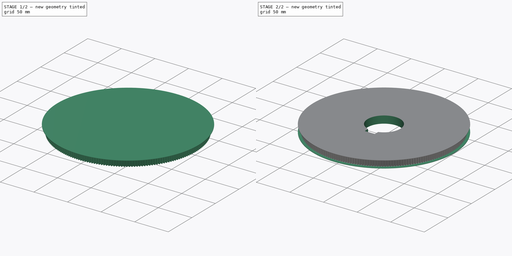
[diagram: build sequence overview — one tinted view per stage of 2, left to right]
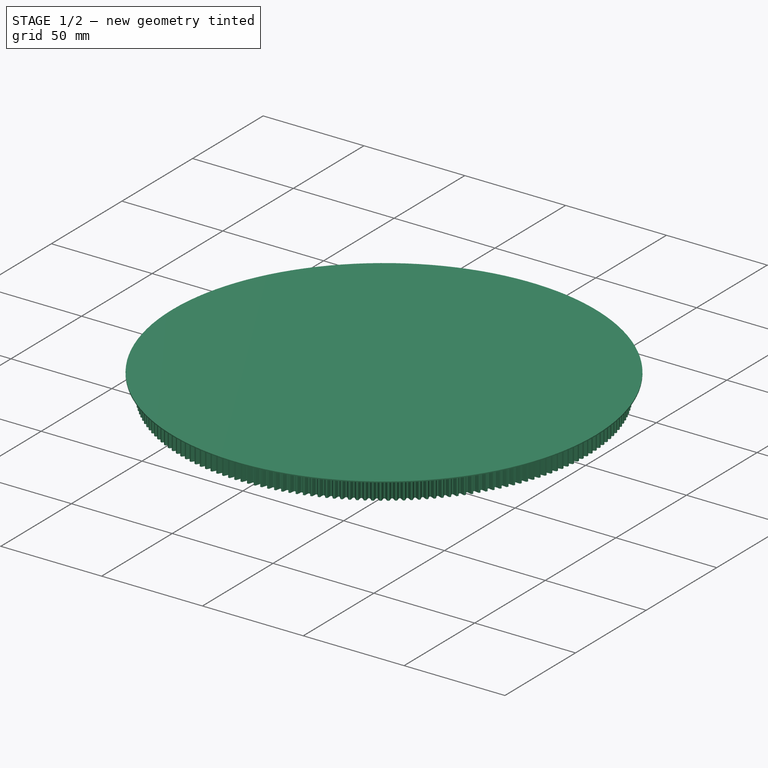
[diagram: stage 1 of 2 — iso view after this stage's code; geometry added in this stage tinted green]
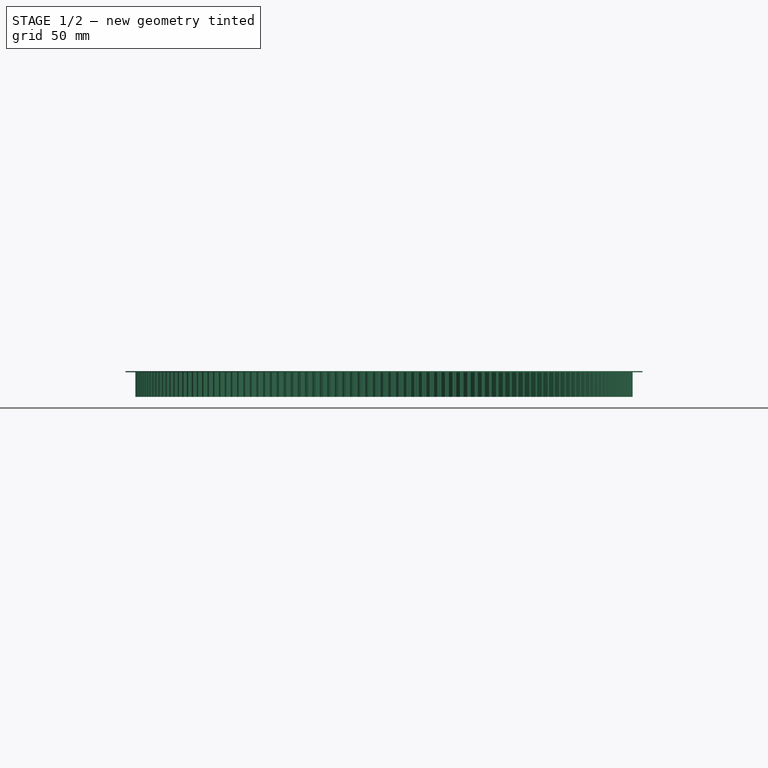
[diagram: stage 1 of 2 — front view after this stage's code; geometry added in this stage tinted green]
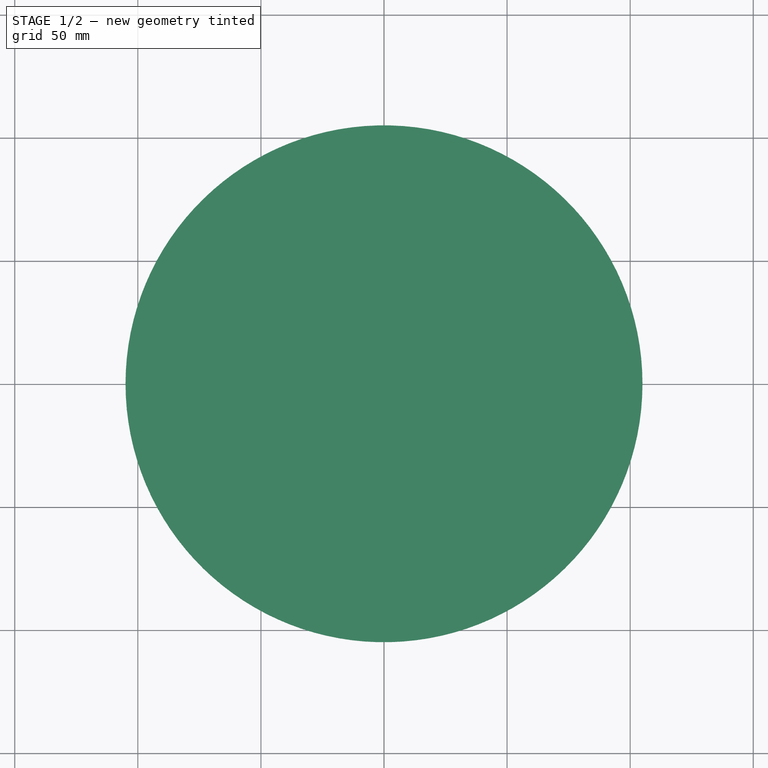
[diagram: stage 1 of 2 — top view after this stage's code; geometry added in this stage tinted green]
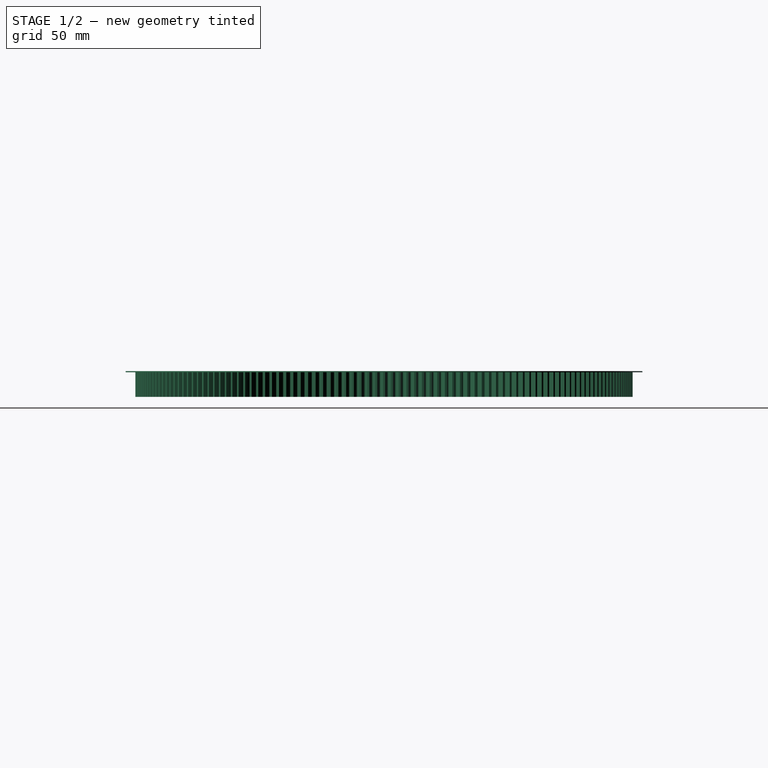
[diagram: stage 1 of 2 — right view after this stage's code; geometry added in this stage tinted green]
FCSTD DOCUMENT  (FreeCAD 0.21R33771 (Git))
Label: gear_margins
License: All rights reserved
LicenseURL: https://en.wikipedia.org/wiki/All_rights_reserved
objects: PartDesign::Pad×3, Sketcher::SketchObject×3, Part::Part2DObjectPython×1, PartDesign::Pocket×1, PartDesign::Body×1
note: 13 computed .brp shape members not serialized (recipe doc carries the construction recipe); baked Part::Feature solids carry a one-line shape summary decoded from their .brp

FEATURE [Part::Part2DObjectPython] InvoluteGear  # Draft 2D object (typed FeaturePython)
  AddendumCoefficient = 1
  DedendumCoefficient = 1.25
  ExternalGear = true
  HighPrecision = true
  Modules = 1
  NumberOfTeeth = 200
  PressureAngle = 20
  ProfileShiftCoefficient = 0
  RootFilletCoefficient = 0.38
FEATURE [PartDesign::Pad] Pad
  Direction = (0,0,1)
  Length = 10
  Length2 = 10
  Profile = -> InvoluteGear
  ReferenceAxis = -> InvoluteGear [N_Axis]
  Type = 0
FEATURE [Sketcher::SketchObject] Sketch
  FullyConstrained = true
  MapMode = 5
  Placement = pos=(0,0,10) rot=(0,0,1;0rad)
  Support = -> [Pad]
  sketch-geometry (1):
    g0: Circle CenterX=0 CenterY=0 CenterZ=0 NormalX=0 NormalY=0 NormalZ=1 AngleXU=0 Radius=105
  constraints (2):
    c: Coincident(g0,g-1)
    c: Radius(g0) = 105
FEATURE [PartDesign::Pad] Pad001
  BaseFeature = -> Pad
  Direction = (0,0,1)
  Length = 0.5
  Length2 = 10
  Profile = -> Sketch
  ReferenceAxis = -> Sketch [N_Axis]
  Type = 0
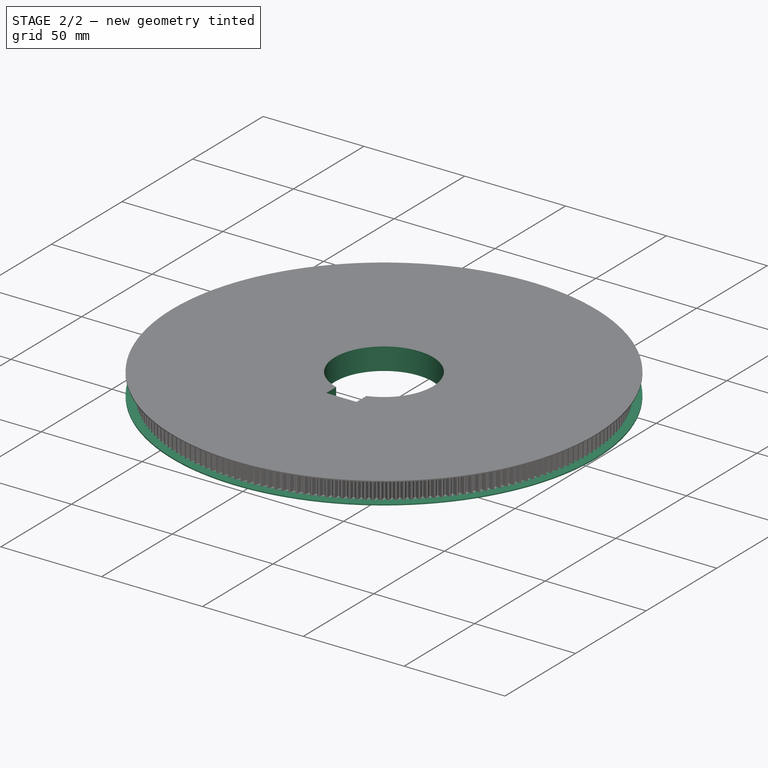
[diagram: stage 2 of 2 — iso view after this stage's code; geometry added in this stage tinted green]
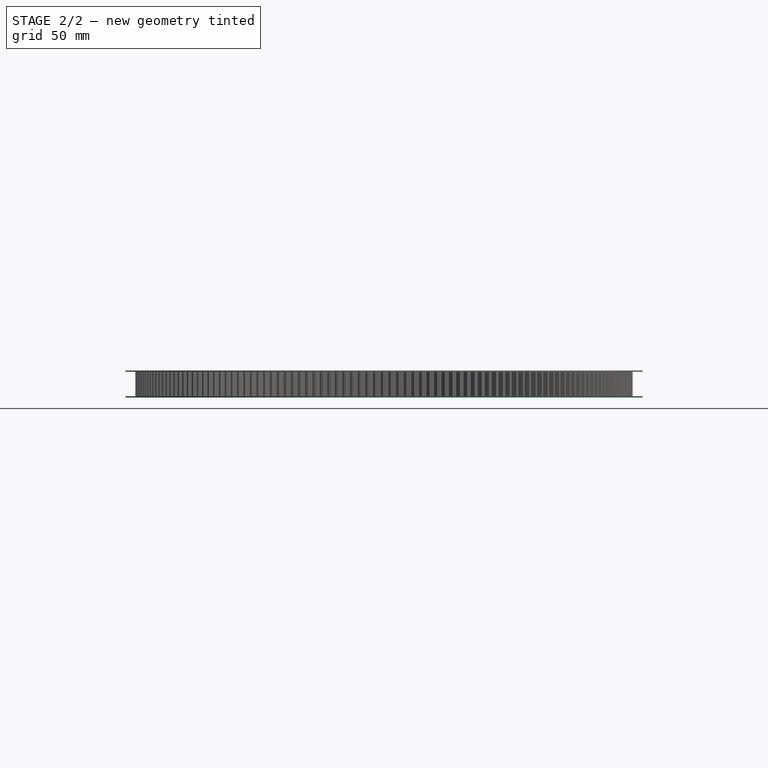
[diagram: stage 2 of 2 — front view after this stage's code; geometry added in this stage tinted green]
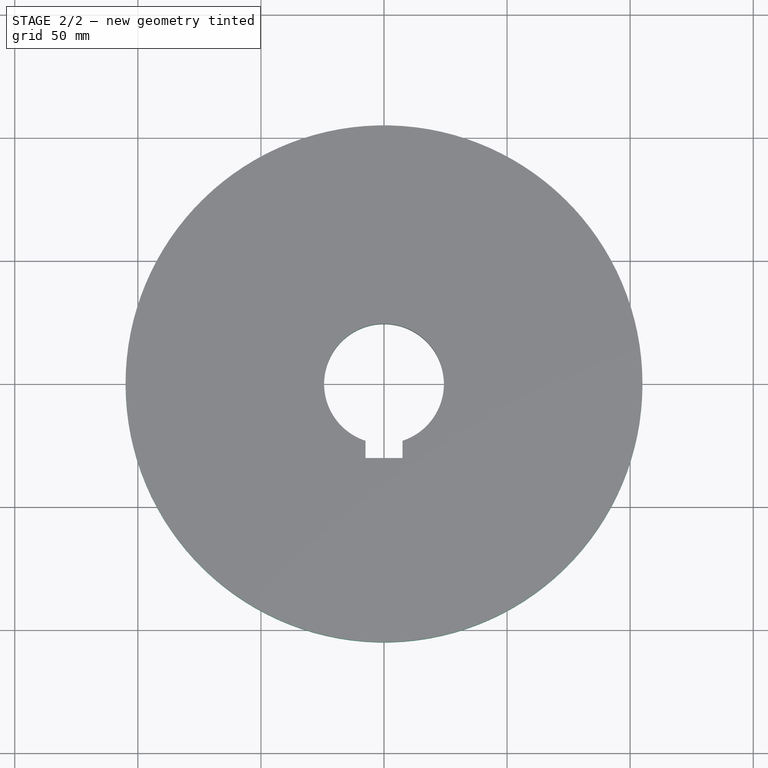
[diagram: stage 2 of 2 — top view after this stage's code; geometry added in this stage tinted green]
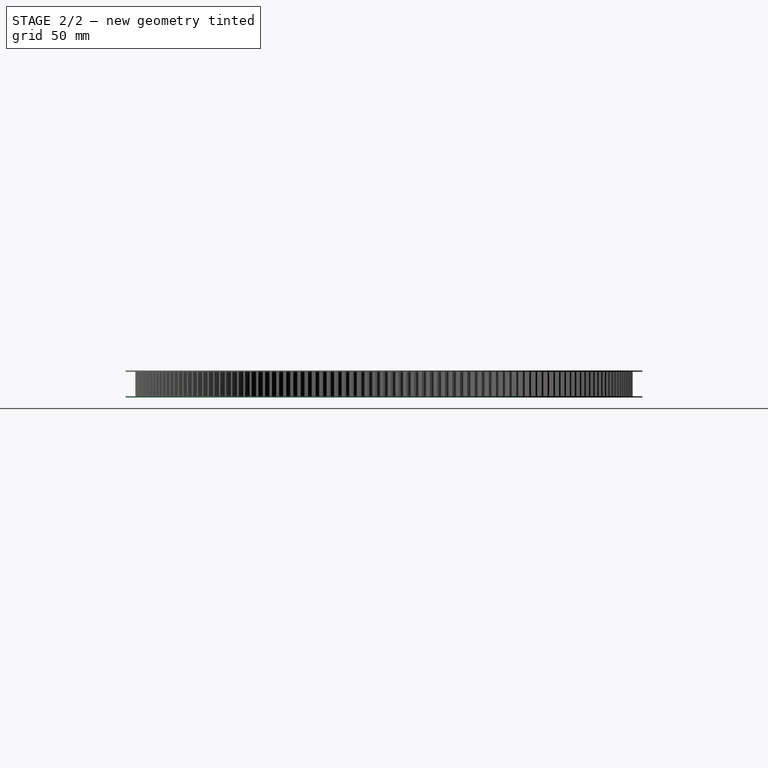
[diagram: stage 2 of 2 — right view after this stage's code; geometry added in this stage tinted green]
FEATURE [Sketcher::SketchObject] Sketch001
  FullyConstrained = true
  MapMode = 5
  Placement = pos=(0,0,0) rot=(1,0,0;3.14159rad)
  Support = -> [Pad001]
  sketch-geometry (1):
    g0: Circle CenterX=0 CenterY=0 CenterZ=0 NormalX=0 NormalY=0 NormalZ=1 AngleXU=0 Radius=105
  constraints (2):
    c: Coincident(g0,g-1)
    c: Radius(g0) = 105
FEATURE [PartDesign::Pad] Pad002
  BaseFeature = -> Pad001
  Direction = (0,0,-1)
  Length = 0.5
  Length2 = 10
  Profile = -> Sketch001
  ReferenceAxis = -> Sketch001 [N_Axis]
  Type = 0
FEATURE [Sketcher::SketchObject] Sketch002
  FullyConstrained = false
  MapMode = 5
  Placement = pos=(0,0,-0.5) rot=(1,0,0;3.14159rad)
  Support = -> [Pad002]
  sketch-geometry (5):
    g0: ArcOfCircle CenterX=0 CenterY=0 CenterZ=0 NormalX=0 NormalY=0 NormalZ=1 AngleXU=0 Radius=24.3413 StartAngle=1.88401 EndAngle=7.54077
    g1: LineSegment StartX=-7.5 StartY=30.157 StartZ=0 EndX=7.5 EndY=30.157 EndZ=0
    g2: LineSegment StartX=7.5 StartY=30.157 StartZ=0 EndX=7.5 EndY=23.157 EndZ=0
    g3: GeomPoint X=0 Y=0 Z=0
    g4: LineSegment StartX=-7.5 StartY=23.157 StartZ=0 EndX=-7.5 EndY=30.157 EndZ=0
  constraints (12):
    c: Coincident(g0,g-1)
    c: Coincident(g4,g1)
    c: Coincident(g1,g2)
    c: Horizontal(g1)
    c: Vertical(g2)
    c: Coincident(g3,g0)
    c: Coincident(g4,g0)
    c: Coincident(g2,g0)
    c: Vertical(g4)
    c: DistanceX(g1,g1) = 15
    c: Equal(g4,g2)
    c: DistanceY(g0,g1) = 7
FEATURE [PartDesign::Pocket] Pocket
  BaseFeature = -> Pad002
  Direction = (0,0,1)
  Length = 5
  Length2 = 5
  Profile = -> Sketch002
  ReferenceAxis = -> Sketch002 [N_Axis]
  Type = 1
FEATURE [PartDesign::Body] Body
  Group = -> [InvoluteGear,Pad,Sketch,Pad001,Sketch001,Pad002,Sketch002,Pocket]
  Origin = -> Origin
  Tip = -> Pocket
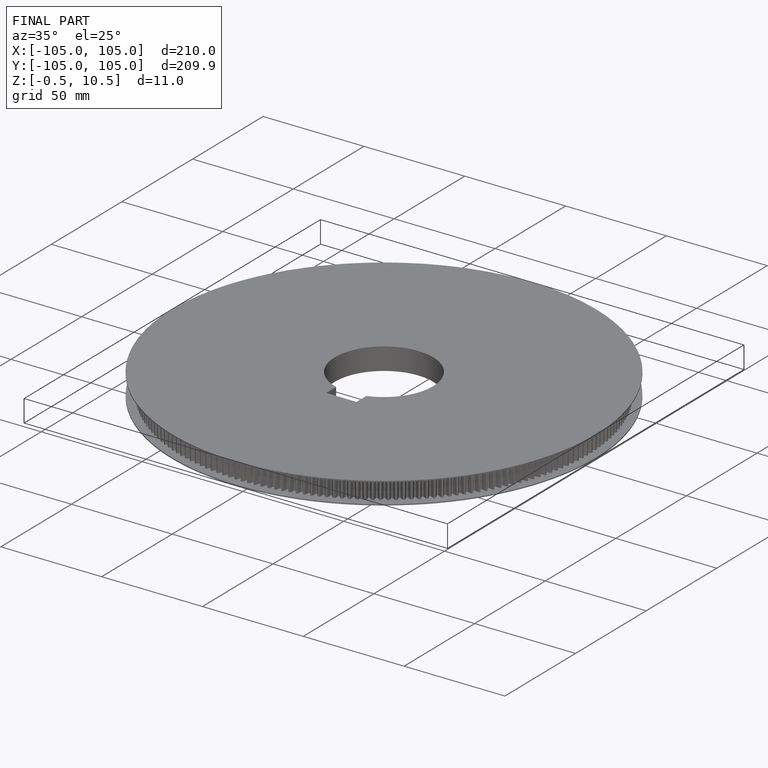
[diagram: finished part — iso view with bounding-box wireframe]
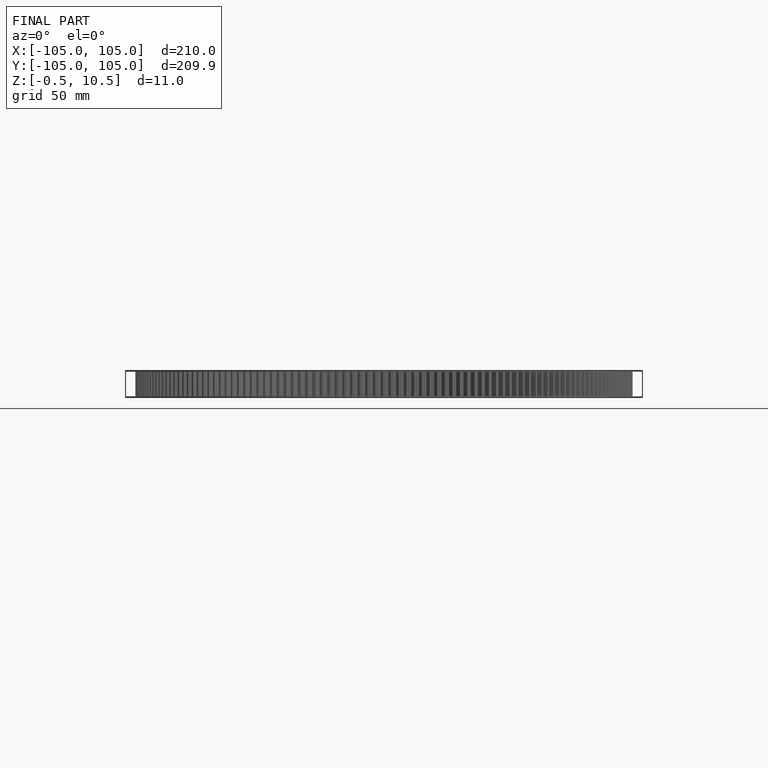
[diagram: finished part — front view with bounding-box wireframe]
